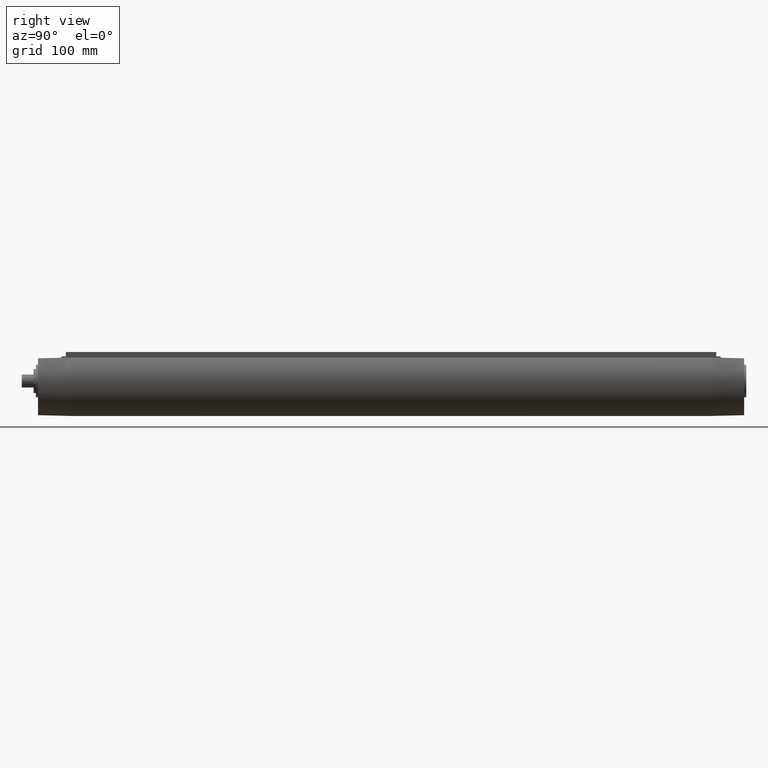
[diagram: clean part render]
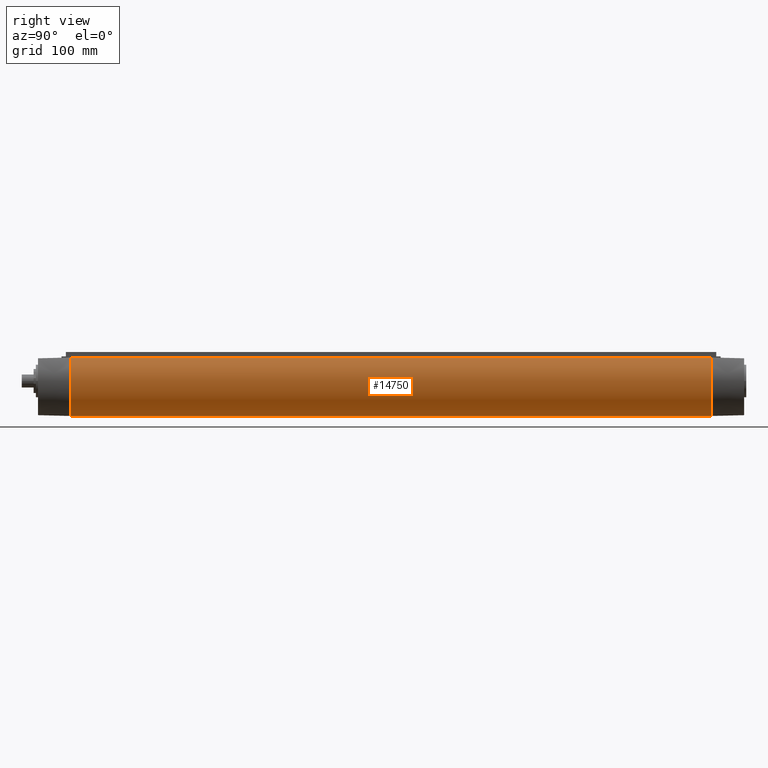
[diagram: same view with one face highlighted and labeled with its STEP entity id]
A machine part, right view. The second image highlights one B-rep face of the part: STEP entity #14750.
In plain terms, the highlighted cylindrical surface (partial cylindrical patch) has radius 35 mm, axis along (-0, -1, -0).
Its self-contained STEP definition (entity closure, byte-faithful):
#6370=CARTESIAN_POINT('',(-14.1774468787578,-32.,32.));
#6380=VERTEX_POINT('',#6370);
#6470=CARTESIAN_POINT('',(-27.617928959283,21.4999999999999,
31.9999999999999));
#6480=VERTEX_POINT('',#6470);
#6510=CARTESIAN_POINT('',(1.77723181184628E-13,8.17455024332374E-14,
31.9999999999839));
#6520=DIRECTION('',(-3.51602215649267E-15,-2.26462355530433E-15,-1.));
#6530=DIRECTION('',(1.,7.8350903060862E-30,-3.51602215649267E-15));
#6540=AXIS2_PLACEMENT_3D('',#6510,#6520,#6530);
#6550=CIRCLE('',#6540,35.);
#6560=EDGE_CURVE('',#6380,#6480,#6550,.T.);
#9390=CARTESIAN_POINT('',(-27.617928959283,21.4999999999999,618.));
#9400=VERTEX_POINT('',#9390);
#11440=CARTESIAN_POINT('',(-14.1774468787636,-32.0000000000274,
617.999999998878));
#11450=VERTEX_POINT('',#11440);
#11740=CARTESIAN_POINT('',(1.05644213013765E-12,-4.18144686878121E-13,
617.999999999991));
#11750=DIRECTION('',(-2.28504321891682E-14,9.12877758149621E-15,1.));
#11760=DIRECTION('',(-1.,2.27547761313911E-28,-2.28504321891682E-14));
#11770=AXIS2_PLACEMENT_3D('',#11740,#11750,#11760);
#11780=CIRCLE('',#11770,35.000000000001);
#11790=EDGE_CURVE('',#9400,#11450,#11780,.T.);
#14540=CARTESIAN_POINT('',(2.8421709430404E-14,-7.99360577730113E-15,
618.499999999994));
#14550=DIRECTION('',(0.,0.,-1.));
#14560=DIRECTION('',(-1.,0.,0.));
#14570=AXIS2_PLACEMENT_3D('',#14540,#14550,#14560);
#14580=CYLINDRICAL_SURFACE('',#14570,35.);
#14590=ORIENTED_EDGE('',*,*,#6560,.F.);
#14600=CARTESIAN_POINT('',(-27.617928959283,21.4999999999999,
618.499999999994));
#14610=DIRECTION('',(0.,0.,-1.));
#14620=VECTOR('',#14610,1.);
#14630=LINE('',#14600,#14620);
#14640=EDGE_CURVE('',#9400,#6480,#14630,.T.);
#14650=ORIENTED_EDGE('',*,*,#14640,.T.);
#14660=ORIENTED_EDGE('',*,*,#11790,.F.);
#14670=CARTESIAN_POINT('',(-14.1774468787578,-32.,618.499999999994));
#14680=DIRECTION('',(0.,0.,1.));
#14690=VECTOR('',#14680,1.);
#14700=LINE('',#14670,#14690);
#14710=EDGE_CURVE('',#6380,#11450,#14700,.T.);
#14720=ORIENTED_EDGE('',*,*,#14710,.T.);
#14730=EDGE_LOOP('',(#14720,#14660,#14650,#14590));
#14740=FACE_OUTER_BOUND('',#14730,.T.);
#14750=ADVANCED_FACE('',(#14740),#14580,.T.);